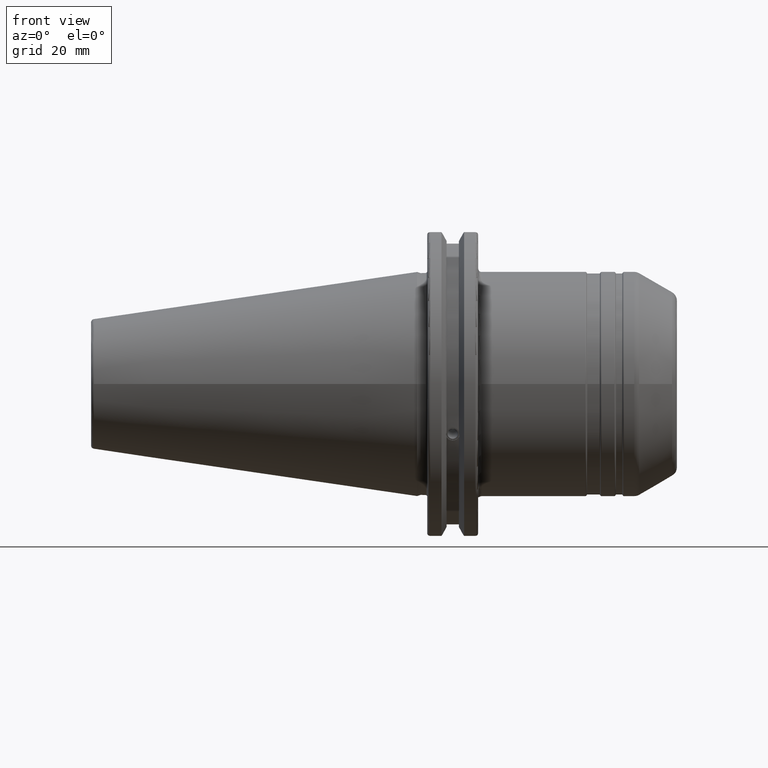
[diagram: clean part render]
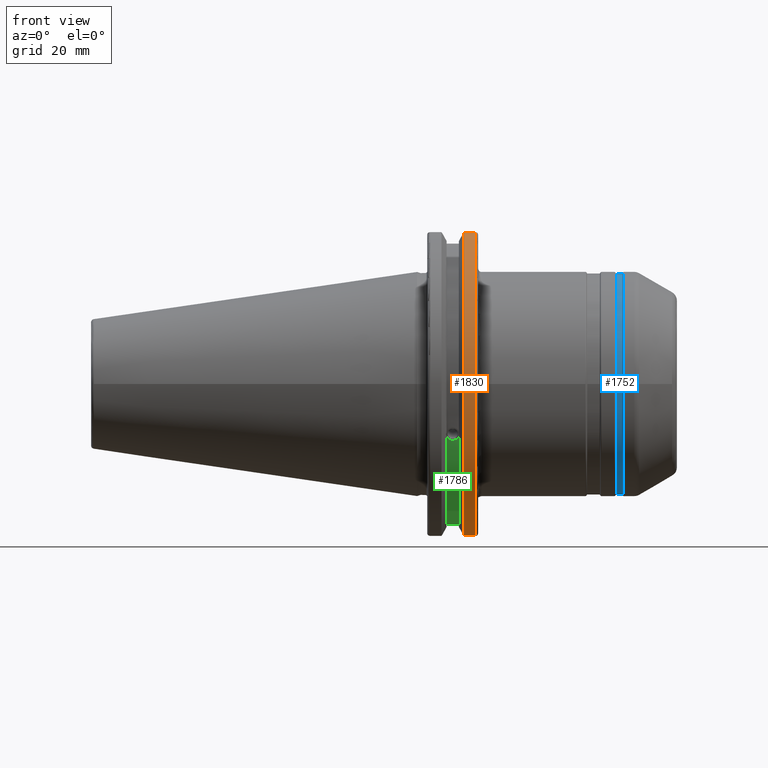
[diagram: same view with three faces highlighted in distinct colors, each labeled with its STEP entity id]
A machine part, front view with three faces highlighted in distinct colors.
Their STEP definitions:

[orange] entity #1830 — the highlighted cylindrical surface (partial cylindrical patch) has radius 49.2125 mm, axis along (1, 0, 0).
#244=FACE_OUTER_BOUND('',#363,.T.);
#363=EDGE_LOOP('',(#1627,#1628,#1629,#1630));
#478=LINE('',#3636,#579);
#479=LINE('',#3638,#580);
#579=VECTOR('',#2567,10.);
#580=VECTOR('',#2570,10.);
#654=CIRCLE('',#1977,49.2125);
#684=CIRCLE('',#2035,49.2125);
#782=VERTEX_POINT('',#3078);
#783=VERTEX_POINT('',#3082);
#859=VERTEX_POINT('',#3479);
#860=VERTEX_POINT('',#3488);
#997=EDGE_CURVE('',#783,#782,#654,.T.);
#1099=EDGE_CURVE('',#859,#860,#684,.T.);
#1145=EDGE_CURVE('',#860,#782,#478,.T.);
#1146=EDGE_CURVE('',#783,#859,#479,.T.);
#1627=ORIENTED_EDGE('',*,*,#1099,.F.);
#1628=ORIENTED_EDGE('',*,*,#1146,.F.);
#1629=ORIENTED_EDGE('',*,*,#997,.T.);
#1630=ORIENTED_EDGE('',*,*,#1145,.F.);
#1742=CYLINDRICAL_SURFACE('',#2063,49.2125);
#1830=ADVANCED_FACE('',(#244),#1742,.T.);
#1977=AXIS2_PLACEMENT_3D('',#3083,#2326,#2327);
#2035=AXIS2_PLACEMENT_3D('',#3489,#2488,#2489);
#2063=AXIS2_PLACEMENT_3D('',#3637,#2568,#2569);
#2326=DIRECTION('center_axis',(1.,0.,0.));
#2327=DIRECTION('ref_axis',(0.,0.,-1.));
#2488=DIRECTION('center_axis',(1.,0.,0.));
#2489=DIRECTION('ref_axis',(0.,-1.,1.60812264967664E-16));
#2567=DIRECTION('',(-1.,0.,0.));
#2568=DIRECTION('center_axis',(1.,0.,0.));
#2569=DIRECTION('ref_axis',(0.,-1.,1.22464679914735E-16));
#2570=DIRECTION('',(1.,0.,0.));
#3078=CARTESIAN_POINT('',(14.6602090340487,-13.4317035994433,-47.3440544806494));
#3082=CARTESIAN_POINT('',(14.6602090340487,-13.4317035994433,47.3440544806494));
#3083=CARTESIAN_POINT('Origin',(14.6602090340487,0.,0.));
#3479=CARTESIAN_POINT('',(18.05,-13.4317035994433,47.3440544806494));
#3488=CARTESIAN_POINT('',(18.05,-13.4317035994433,-47.3440544806494));
#3489=CARTESIAN_POINT('Origin',(18.05,0.,0.));
#3636=CARTESIAN_POINT('',(16.8551045170244,-13.4317035994433,-47.3440544806494));
#3637=CARTESIAN_POINT('Origin',(16.8551045170244,0.,0.));
#3638=CARTESIAN_POINT('',(16.8551045170244,-13.4317035994433,47.3440544806494));

[blue] entity #1752 — the highlighted cylindrical surface (bore or boss wall) has radius 34.45 mm, axis along (1, 0, 0).
#166=FACE_OUTER_BOUND('',#270,.T.);
#270=EDGE_LOOP('',(#1187,#1188,#1189,#1190,#1191,#1192));
#388=LINE('',#2785,#489);
#489=VECTOR('',#2123,34.45);
#591=CIRCLE('',#1880,34.45);
#595=CIRCLE('',#1884,34.45);
#596=CIRCLE('',#1886,34.45);
#597=CIRCLE('',#1887,34.45);
#714=VERTEX_POINT('',#2774);
#715=VERTEX_POINT('',#2775);
#718=VERTEX_POINT('',#2784);
#719=VERTEX_POINT('',#2786);
#901=EDGE_CURVE('',#714,#715,#591,.T.);
#905=EDGE_CURVE('',#715,#714,#595,.T.);
#906=EDGE_CURVE('',#714,#718,#388,.T.);
#907=EDGE_CURVE('',#719,#718,#596,.T.);
#908=EDGE_CURVE('',#718,#719,#597,.T.);
#1187=ORIENTED_EDGE('',*,*,#901,.F.);
#1188=ORIENTED_EDGE('',*,*,#906,.T.);
#1189=ORIENTED_EDGE('',*,*,#907,.F.);
#1190=ORIENTED_EDGE('',*,*,#908,.F.);
#1191=ORIENTED_EDGE('',*,*,#906,.F.);
#1192=ORIENTED_EDGE('',*,*,#905,.F.);
#1720=CYLINDRICAL_SURFACE('',#1885,34.45);
#1752=ADVANCED_FACE('',(#166),#1720,.T.);
#1880=AXIS2_PLACEMENT_3D('',#2776,#2111,#2112);
#1884=AXIS2_PLACEMENT_3D('',#2782,#2119,#2120);
#1885=AXIS2_PLACEMENT_3D('',#2783,#2121,#2122);
#1886=AXIS2_PLACEMENT_3D('',#2787,#2124,#2125);
#1887=AXIS2_PLACEMENT_3D('',#2788,#2126,#2127);
#2111=DIRECTION('center_axis',(1.,0.,0.));
#2112=DIRECTION('ref_axis',(0.,-1.,1.83697019872103E-16));
#2119=DIRECTION('center_axis',(1.,0.,0.));
#2120=DIRECTION('ref_axis',(0.,-1.,1.83697019872103E-16));
#2121=DIRECTION('center_axis',(1.,0.,0.));
#2122=DIRECTION('ref_axis',(0.,1.,0.));
#2123=DIRECTION('',(-1.,0.,0.));
#2124=DIRECTION('center_axis',(-1.,0.,0.));
#2125=DIRECTION('ref_axis',(0.,-1.,1.83697019872103E-16));
#2126=DIRECTION('center_axis',(-1.,0.,0.));
#2127=DIRECTION('ref_axis',(0.,-1.,1.83697019872103E-16));
#2774=CARTESIAN_POINT('',(63.8845299461621,-34.45,-4.21890822306263E-15));
#2775=CARTESIAN_POINT('',(63.8845299461621,-4.21890822306263E-15,34.45));
#2776=CARTESIAN_POINT('Origin',(63.8845299461621,0.,0.));
#2782=CARTESIAN_POINT('Origin',(63.8845299461621,0.,0.));
#2783=CARTESIAN_POINT('Origin',(63.,0.,0.));
#2784=CARTESIAN_POINT('',(62.1154700538379,-34.45,-4.21890822306263E-15));
#2785=CARTESIAN_POINT('',(63.,-34.45,-4.21890822306263E-15));
#2786=CARTESIAN_POINT('',(62.1154700538379,-4.21890822306263E-15,34.45));
#2787=CARTESIAN_POINT('Origin',(62.1154700538379,0.,0.));
#2788=CARTESIAN_POINT('Origin',(62.1154700538379,0.,0.));

[green] entity #1786 — the highlighted cylindrical surface (partial cylindrical patch) has radius 45.6435 mm, axis along (1, 0, 0).
#136=B_SPLINE_CURVE_WITH_KNOTS('',3,(#3030,#3031,#3032,#3033,#3034,#3035,
#3036,#3037,#3038,#3039,#3040,#3041,#3042,#3043,#3044),.UNSPECIFIED.,.F.,
 .F.,(4,2,2,3,2,2,4),(-0.231381164054419,-0.158232381135623,-0.0791161905678117,
0.,0.0791161905678116,0.158232381135623,0.231381164054566),
 .UNSPECIFIED.);
#200=FACE_OUTER_BOUND('',#311,.T.);
#311=EDGE_LOOP('',(#1370,#1371,#1372,#1373));
#410=LINE('',#3100,#511);
#511=VECTOR('',#2339,10.);
#656=CIRCLE('',#1980,45.6435);
#657=CIRCLE('',#1982,45.6435);
#772=VERTEX_POINT('',#3027);
#773=VERTEX_POINT('',#3029);
#786=VERTEX_POINT('',#3094);
#787=VERTEX_POINT('',#3098);
#984=EDGE_CURVE('',#773,#772,#136,.T.);
#1001=EDGE_CURVE('',#773,#786,#656,.T.);
#1003=EDGE_CURVE('',#772,#787,#657,.T.);
#1004=EDGE_CURVE('',#787,#786,#410,.T.);
#1370=ORIENTED_EDGE('',*,*,#984,.T.);
#1371=ORIENTED_EDGE('',*,*,#1003,.T.);
#1372=ORIENTED_EDGE('',*,*,#1004,.T.);
#1373=ORIENTED_EDGE('',*,*,#1001,.F.);
#1731=CYLINDRICAL_SURFACE('',#1981,45.6435);
#1786=ADVANCED_FACE('',(#200),#1731,.T.);
#1980=AXIS2_PLACEMENT_3D('',#3095,#2332,#2333);
#1981=AXIS2_PLACEMENT_3D('',#3097,#2335,#2336);
#1982=AXIS2_PLACEMENT_3D('',#3099,#2337,#2338);
#2332=DIRECTION('center_axis',(1.,0.,0.));
#2333=DIRECTION('ref_axis',(0.,0.,-1.));
#2335=DIRECTION('center_axis',(1.,0.,0.));
#2336=DIRECTION('ref_axis',(0.,1.,0.));
#2337=DIRECTION('center_axis',(1.,0.,0.));
#2338=DIRECTION('ref_axis',(0.,0.,-1.));
#2339=DIRECTION('',(1.,0.,0.));
#3027=CARTESIAN_POINT('',(9.2191,-42.5884454651059,-16.4180816515115));
#3029=CARTESIAN_POINT('',(13.0491,-42.5884454651059,-16.4180816515115));
#3030=CARTESIAN_POINT('Ctrl Pts',(13.0491,-42.5884454651059,-16.4180816515115));
#3031=CARTESIAN_POINT('Ctrl Pts',(12.9428782240206,-42.5035323832641,-16.6383458840848));
#3032=CARTESIAN_POINT('Ctrl Pts',(12.791391924423,-42.4245077186417,-16.8380515255915));
#3033=CARTESIAN_POINT('Ctrl Pts',(12.4325949659982,-42.2908173017388,-17.1712159412199));
#3034=CARTESIAN_POINT('Ctrl Pts',(12.1964796719457,-42.2294695309474,-17.3208689126276));
#3035=CARTESIAN_POINT('Ctrl Pts',(11.6790940832128,-42.1475978938586,-17.5191491957165));
#3036=CARTESIAN_POINT('Ctrl Pts',(11.397820635226,-42.1271980081205,-17.5678194501937));
#3037=CARTESIAN_POINT('Ctrl Pts',(11.1341,-42.1271980081205,-17.5678194501937));
#3038=CARTESIAN_POINT('Ctrl Pts',(10.870379364774,-42.1271980081205,-17.5678194501937));
#3039=CARTESIAN_POINT('Ctrl Pts',(10.5891059167872,-42.1475978938586,-17.5191491957165));
#3040=CARTESIAN_POINT('Ctrl Pts',(10.0717203280543,-42.2294695309474,-17.3208689126276));
#3041=CARTESIAN_POINT('Ctrl Pts',(9.83560503400179,-42.2908173017388,-17.1712159412199));
#3042=CARTESIAN_POINT('Ctrl Pts',(9.47680807557665,-42.4245077186418,-16.8380515255912));
#3043=CARTESIAN_POINT('Ctrl Pts',(9.32532177598175,-42.5035323832622,-16.6383458840897));
#3044=CARTESIAN_POINT('Ctrl Pts',(9.21909999999999,-42.5884454651059,-16.4180816515115));
#3094=CARTESIAN_POINT('',(13.0491,-12.95,-43.7678716897452));
#3095=CARTESIAN_POINT('Origin',(13.0491,0.,0.));
#3097=CARTESIAN_POINT('Origin',(11.1341,0.,0.));
#3098=CARTESIAN_POINT('',(9.2191,-12.95,-43.7678716897452));
#3099=CARTESIAN_POINT('Origin',(9.2191,0.,0.));
#3100=CARTESIAN_POINT('',(11.1341,-12.95,-43.7678716897452));